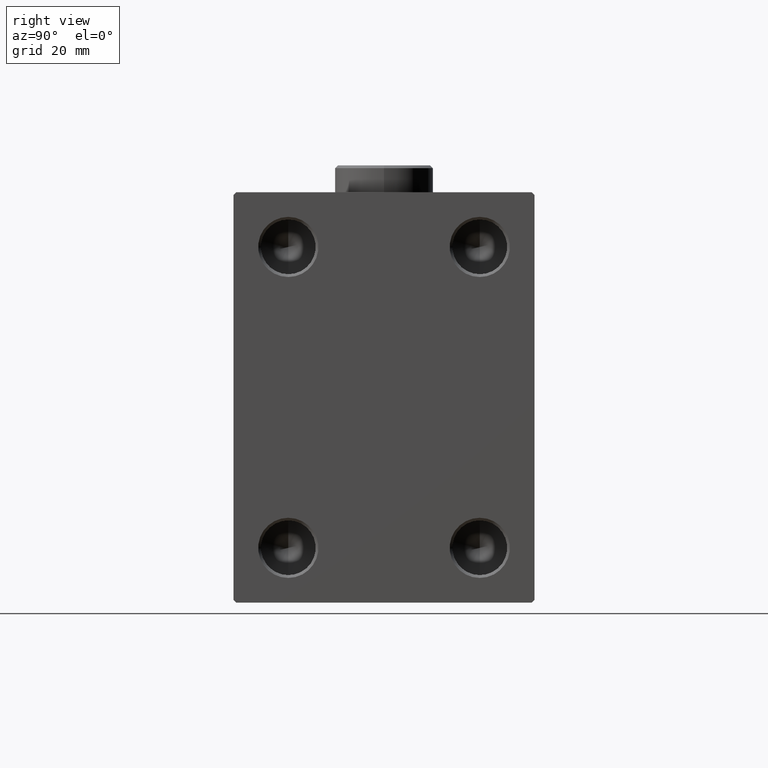
[diagram: clean part render]
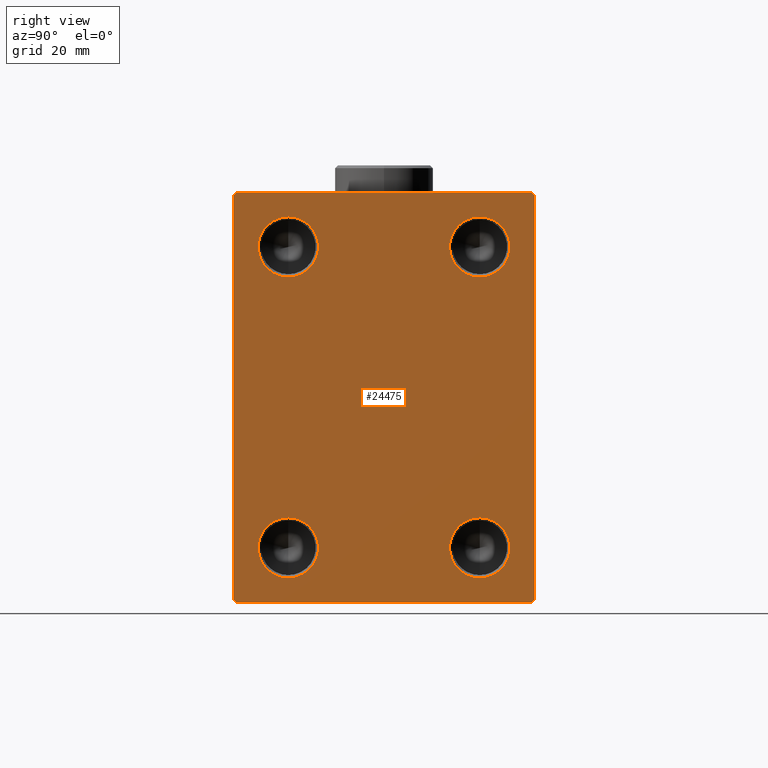
[diagram: same view with one face highlighted and labeled with its STEP entity id]
A machine part, right view. The second image highlights one B-rep face of the part: STEP entity #24475.
In plain terms, the highlighted planar face has unit normal (1, 0, 0).
Its self-contained STEP definition (entity closure, byte-faithful):
#534 = LINE ( 'NONE', #4228, #26527 ) ;
#584 = VECTOR ( 'NONE', #36568, 1000.000000000000000 ) ;
#1288 = DIRECTION ( 'NONE',  ( 0.000000000000000000, 0.000000000000000000, -1.000000000000000000 ) ) ;
#1483 = ORIENTED_EDGE ( 'NONE', *, *, #23324, .F. ) ;
#1681 = LINE ( 'NONE', #15740, #12136 ) ;
#1721 = VERTEX_POINT ( 'NONE', #13013 ) ;
#1748 = CARTESIAN_POINT ( 'NONE',  ( 80.00000000000000000, 27.49999999999999645, 37.50000000000000000 ) ) ;
#1836 = DIRECTION ( 'NONE',  ( 0.000000000000000000, 0.000000000000000000, -1.000000000000000000 ) ) ;
#1878 = DIRECTION ( 'NONE',  ( 1.000000000000000000, -0.000000000000000000, -0.000000000000000000 ) ) ;
#2237 = FACE_BOUND ( 'NONE', #3234, .T. ) ;
#2831 = VERTEX_POINT ( 'NONE', #5893 ) ;
#2861 = ORIENTED_EDGE ( 'NONE', *, *, #21740, .T. ) ;
#2931 = FACE_BOUND ( 'NONE', #36916, .T. ) ;
#3234 = EDGE_LOOP ( 'NONE', ( #21509, #29872 ) ) ;
#3996 = EDGE_CURVE ( 'NONE', #44476, #1721, #6262, .T. ) ;
#4016 = VERTEX_POINT ( 'NONE', #18296 ) ;
#4127 = EDGE_CURVE ( 'NONE', #39561, #23526, #1681, .T. ) ;
#4228 = CARTESIAN_POINT ( 'NONE',  ( 80.00000000000000000, -27.49999999999999645, 37.49999999999998579 ) ) ;
#4265 = ORIENTED_EDGE ( 'NONE', *, *, #4127, .T. ) ;
#4395 = VERTEX_POINT ( 'NONE', #15138 ) ;
#5280 = ORIENTED_EDGE ( 'NONE', *, *, #38002, .T. ) ;
#5478 = CARTESIAN_POINT ( 'NONE',  ( 80.00000000000000000, 27.50000000000000355, -37.50000000000000000 ) ) ;
#5667 = EDGE_CURVE ( 'NONE', #32601, #4395, #18157, .T. ) ;
#5717 = DIRECTION ( 'NONE',  ( 0.000000000000000000, -9.251858538542971581E-17, 1.000000000000000000 ) ) ;
#5851 = VECTOR ( 'NONE', #27840, 1000.000000000000114 ) ;
#5893 = CARTESIAN_POINT ( 'NONE',  ( 80.00000000000000000, 17.50000000000000000, -22.00000000000000355 ) ) ;
#6262 = CIRCLE ( 'NONE', #22467, 5.499999999999991118 ) ;
#6999 = CARTESIAN_POINT ( 'NONE',  ( 80.00000000000000000, -26.99999999999999645, 37.49999999999998579 ) ) ;
#7161 = VECTOR ( 'NONE', #33404, 1000.000000000000114 ) ;
#7904 = DIRECTION ( 'NONE',  ( 1.000000000000000000, -0.000000000000000000, -0.000000000000000000 ) ) ;
#8962 = CARTESIAN_POINT ( 'NONE',  ( 80.00000000000000000, -17.50000000000000000, 22.00000000000000711 ) ) ;
#9268 = EDGE_CURVE ( 'NONE', #41545, #38009, #26141, .T. ) ;
#9448 = LINE ( 'NONE', #34099, #7161 ) ;
#9628 = CARTESIAN_POINT ( 'NONE',  ( 80.00000000000000000, 0.000000000000000000, 0.000000000000000000 ) ) ;
#9897 = VERTEX_POINT ( 'NONE', #33511 ) ;
#10067 = CARTESIAN_POINT ( 'NONE',  ( 80.00000000000000000, -17.50000000000000000, -27.49999999999999645 ) ) ;
#10088 = AXIS2_PLACEMENT_3D ( 'NONE', #26326, #7904, #36938 ) ;
#10489 = DIRECTION ( 'NONE',  ( 0.000000000000000000, 0.000000000000000000, -1.000000000000000000 ) ) ;
#10599 = DIRECTION ( 'NONE',  ( 1.000000000000000000, -0.000000000000000000, -0.000000000000000000 ) ) ;
#11702 = CIRCLE ( 'NONE', #29345, 5.499999999999991118 ) ;
#12136 = VECTOR ( 'NONE', #29783, 1000.000000000000114 ) ;
#12170 = VECTOR ( 'NONE', #36136, 1000.000000000000000 ) ;
#12472 = VERTEX_POINT ( 'NONE', #27387 ) ;
#12807 = VERTEX_POINT ( 'NONE', #41844 ) ;
#13013 = CARTESIAN_POINT ( 'NONE',  ( 80.00000000000000000, -17.50000000000000000, -32.99999999999998579 ) ) ;
#13933 = DIRECTION ( 'NONE',  ( 0.000000000000000000, 0.000000000000000000, -1.000000000000000000 ) ) ;
#14574 = CIRCLE ( 'NONE', #19018, 5.499999999999994671 ) ;
#15138 = CARTESIAN_POINT ( 'NONE',  ( 80.00000000000000000, 26.99999999999998934, -37.50000000000000000 ) ) ;
#15740 = CARTESIAN_POINT ( 'NONE',  ( 80.00000000000000000, 32.24999999999999289, 32.24999999999999289 ) ) ;
#15770 = EDGE_CURVE ( 'NONE', #23526, #30276, #26416, .T. ) ;
#16138 = CIRCLE ( 'NONE', #31613, 5.499999999999991118 ) ;
#17623 = VERTEX_POINT ( 'NONE', #21008 ) ;
#17902 = CARTESIAN_POINT ( 'NONE',  ( 80.00000000000000000, -17.50000000000000000, -22.00000000000000355 ) ) ;
#18157 = LINE ( 'NONE', #32212, #12170 ) ;
#18296 = CARTESIAN_POINT ( 'NONE',  ( 80.00000000000000000, -27.49999999999999645, 36.99999999999998579 ) ) ;
#18391 = CARTESIAN_POINT ( 'NONE',  ( 80.00000000000000000, 26.99999999999999645, 37.50000000000000000 ) ) ;
#18663 = CARTESIAN_POINT ( 'NONE',  ( 80.00000000000000000, -17.50000000000000000, 27.50000000000000000 ) ) ;
#19018 = AXIS2_PLACEMENT_3D ( 'NONE', #39798, #10599, #1288 ) ;
#19486 = DIRECTION ( 'NONE',  ( 1.000000000000000000, -0.000000000000000000, -0.000000000000000000 ) ) ;
#19612 = EDGE_LOOP ( 'NONE', ( #25670, #45597, #30327, #5280, #28769, #2861, #44776, #4265 ) ) ;
#19824 = EDGE_CURVE ( 'NONE', #30276, #4016, #30599, .T. ) ;
#20267 = CARTESIAN_POINT ( 'NONE',  ( 80.00000000000000000, -17.50000000000000000, 33.00000000000000000 ) ) ;
#20670 = DIRECTION ( 'NONE',  ( 0.000000000000000000, 0.000000000000000000, -1.000000000000000000 ) ) ;
#21008 = CARTESIAN_POINT ( 'NONE',  ( 80.00000000000000000, 27.50000000000000355, -36.99999999999998579 ) ) ;
#21418 = VERTEX_POINT ( 'NONE', #40954 ) ;
#21509 = ORIENTED_EDGE ( 'NONE', *, *, #3996, .F. ) ;
#21740 = EDGE_CURVE ( 'NONE', #4395, #17623, #36075, .T. ) ;
#22002 = EDGE_CURVE ( 'NONE', #21418, #2831, #11702, .T. ) ;
#22236 = DIRECTION ( 'NONE',  ( -0.000000000000000000, 0.7071067811865474617, 0.7071067811865474617 ) ) ;
#22467 = AXIS2_PLACEMENT_3D ( 'NONE', #28667, #28008, #10489 ) ;
#22983 = ORIENTED_EDGE ( 'NONE', *, *, #43296, .F. ) ;
#23324 = EDGE_CURVE ( 'NONE', #38009, #41545, #38959, .T. ) ;
#23446 = DIRECTION ( 'NONE',  ( 0.000000000000000000, 0.000000000000000000, -1.000000000000000000 ) ) ;
#23507 = DIRECTION ( 'NONE',  ( 1.000000000000000000, -0.000000000000000000, -0.000000000000000000 ) ) ;
#23526 = VERTEX_POINT ( 'NONE', #18391 ) ;
#23705 = EDGE_CURVE ( 'NONE', #1721, #44476, #16138, .T. ) ;
#24096 = AXIS2_PLACEMENT_3D ( 'NONE', #33409, #23507, #1836 ) ;
#24475 = ADVANCED_FACE ( 'NONE', ( #26892, #27586, #2237, #2931, #40967 ), #30344, .T. ) ;
#25670 = ORIENTED_EDGE ( 'NONE', *, *, #15770, .T. ) ;
#26141 = CIRCLE ( 'NONE', #32032, 5.499999999999994671 ) ;
#26326 = CARTESIAN_POINT ( 'NONE',  ( 80.00000000000000000, 17.50000000000000000, 27.50000000000000000 ) ) ;
#26416 = LINE ( 'NONE', #1748, #584 ) ;
#26527 = VECTOR ( 'NONE', #13933, 1000.000000000000000 ) ;
#26892 = FACE_BOUND ( 'NONE', #44086, .T. ) ;
#27017 = EDGE_CURVE ( 'NONE', #4016, #9897, #534, .T. ) ;
#27147 = LINE ( 'NONE', #5478, #44707 ) ;
#27387 = CARTESIAN_POINT ( 'NONE',  ( 80.00000000000000000, 17.50000000000000000, 33.00000000000000000 ) ) ;
#27586 = FACE_BOUND ( 'NONE', #28951, .T. ) ;
#27840 = DIRECTION ( 'NONE',  ( 0.000000000000000000, -0.7071067811865474617, -0.7071067811865474617 ) ) ;
#28008 = DIRECTION ( 'NONE',  ( 1.000000000000000000, -0.000000000000000000, -0.000000000000000000 ) ) ;
#28667 = CARTESIAN_POINT ( 'NONE',  ( 80.00000000000000000, -17.50000000000000000, -27.49999999999999645 ) ) ;
#28769 = ORIENTED_EDGE ( 'NONE', *, *, #5667, .T. ) ;
#28951 = EDGE_LOOP ( 'NONE', ( #1483, #35903 ) ) ;
#29345 = AXIS2_PLACEMENT_3D ( 'NONE', #41933, #1878, #31544 ) ;
#29395 = ORIENTED_EDGE ( 'NONE', *, *, #37527, .F. ) ;
#29616 = DIRECTION ( 'NONE',  ( 0.000000000000000000, 0.000000000000000000, -1.000000000000000000 ) ) ;
#29783 = DIRECTION ( 'NONE',  ( -0.000000000000000000, -0.7071067811865474617, 0.7071067811865474617 ) ) ;
#29872 = ORIENTED_EDGE ( 'NONE', *, *, #23705, .F. ) ;
#30082 = CARTESIAN_POINT ( 'NONE',  ( 80.00000000000000000, 27.49999999999999645, 37.00000000000000000 ) ) ;
#30161 = DIRECTION ( 'NONE',  ( 1.000000000000000000, -0.000000000000000000, -0.000000000000000000 ) ) ;
#30276 = VERTEX_POINT ( 'NONE', #6999 ) ;
#30327 = ORIENTED_EDGE ( 'NONE', *, *, #27017, .T. ) ;
#30344 = PLANE ( 'NONE',  #33115 ) ;
#30599 = LINE ( 'NONE', #45344, #5851 ) ;
#31544 = DIRECTION ( 'NONE',  ( 0.000000000000000000, 0.000000000000000000, -1.000000000000000000 ) ) ;
#31613 = AXIS2_PLACEMENT_3D ( 'NONE', #10067, #34499, #20670 ) ;
#32032 = AXIS2_PLACEMENT_3D ( 'NONE', #36786, #19486, #29616 ) ;
#32212 = CARTESIAN_POINT ( 'NONE',  ( 80.00000000000000000, -27.49999999999999645, -37.50000000000000000 ) ) ;
#32291 = CARTESIAN_POINT ( 'NONE',  ( 80.00000000000000000, -26.99999999999999645, -37.50000000000000000 ) ) ;
#32601 = VERTEX_POINT ( 'NONE', #32291 ) ;
#33115 = AXIS2_PLACEMENT_3D ( 'NONE', #9628, #41427, #23446 ) ;
#33404 = DIRECTION ( 'NONE',  ( -0.000000000000000000, 0.7071067811865474617, -0.7071067811865474617 ) ) ;
#33409 = CARTESIAN_POINT ( 'NONE',  ( 80.00000000000000000, 17.50000000000000000, -27.49999999999999645 ) ) ;
#33511 = CARTESIAN_POINT ( 'NONE',  ( 80.00000000000000000, -27.49999999999999645, -37.00000000000000000 ) ) ;
#34099 = CARTESIAN_POINT ( 'NONE',  ( 80.00000000000000000, -32.24999999999999289, -32.24999999999999289 ) ) ;
#34499 = DIRECTION ( 'NONE',  ( 1.000000000000000000, -0.000000000000000000, -0.000000000000000000 ) ) ;
#35875 = CIRCLE ( 'NONE', #24096, 5.499999999999991118 ) ;
#35903 = ORIENTED_EDGE ( 'NONE', *, *, #9268, .F. ) ;
#36075 = LINE ( 'NONE', #43878, #38933 ) ;
#36136 = DIRECTION ( 'NONE',  ( 0.000000000000000000, 1.000000000000000000, 0.000000000000000000 ) ) ;
#36568 = DIRECTION ( 'NONE',  ( 0.000000000000000000, -1.000000000000000000, -2.523234146875355998E-16 ) ) ;
#36740 = AXIS2_PLACEMENT_3D ( 'NONE', #18663, #30161, #43769 ) ;
#36786 = CARTESIAN_POINT ( 'NONE',  ( 80.00000000000000000, -17.50000000000000000, 27.50000000000000000 ) ) ;
#36916 = EDGE_LOOP ( 'NONE', ( #22983, #37973 ) ) ;
#36938 = DIRECTION ( 'NONE',  ( 0.000000000000000000, 0.000000000000000000, -1.000000000000000000 ) ) ;
#37527 = EDGE_CURVE ( 'NONE', #12807, #12472, #38810, .T. ) ;
#37531 = ORIENTED_EDGE ( 'NONE', *, *, #45432, .F. ) ;
#37973 = ORIENTED_EDGE ( 'NONE', *, *, #22002, .F. ) ;
#38002 = EDGE_CURVE ( 'NONE', #9897, #32601, #9448, .T. ) ;
#38009 = VERTEX_POINT ( 'NONE', #20267 ) ;
#38810 = CIRCLE ( 'NONE', #10088, 5.499999999999994671 ) ;
#38933 = VECTOR ( 'NONE', #22236, 1000.000000000000114 ) ;
#38959 = CIRCLE ( 'NONE', #36740, 5.499999999999994671 ) ;
#39561 = VERTEX_POINT ( 'NONE', #30082 ) ;
#39798 = CARTESIAN_POINT ( 'NONE',  ( 80.00000000000000000, 17.50000000000000000, 27.50000000000000000 ) ) ;
#40954 = CARTESIAN_POINT ( 'NONE',  ( 80.00000000000000000, 17.50000000000000000, -32.99999999999998579 ) ) ;
#40967 = FACE_OUTER_BOUND ( 'NONE', #19612, .T. ) ;
#41427 = DIRECTION ( 'NONE',  ( 1.000000000000000000, 0.000000000000000000, 0.000000000000000000 ) ) ;
#41545 = VERTEX_POINT ( 'NONE', #8962 ) ;
#41844 = CARTESIAN_POINT ( 'NONE',  ( 80.00000000000000000, 17.50000000000000000, 22.00000000000000711 ) ) ;
#41933 = CARTESIAN_POINT ( 'NONE',  ( 80.00000000000000000, 17.50000000000000000, -27.49999999999999645 ) ) ;
#43296 = EDGE_CURVE ( 'NONE', #2831, #21418, #35875, .T. ) ;
#43769 = DIRECTION ( 'NONE',  ( 0.000000000000000000, 0.000000000000000000, -1.000000000000000000 ) ) ;
#43878 = CARTESIAN_POINT ( 'NONE',  ( 80.00000000000000000, 32.24999999999999289, -32.24999999999999289 ) ) ;
#44086 = EDGE_LOOP ( 'NONE', ( #37531, #29395 ) ) ;
#44322 = EDGE_CURVE ( 'NONE', #17623, #39561, #27147, .T. ) ;
#44476 = VERTEX_POINT ( 'NONE', #17902 ) ;
#44707 = VECTOR ( 'NONE', #5717, 1000.000000000000000 ) ;
#44776 = ORIENTED_EDGE ( 'NONE', *, *, #44322, .T. ) ;
#45344 = CARTESIAN_POINT ( 'NONE',  ( 80.00000000000000000, -32.24999999999999289, 32.24999999999999289 ) ) ;
#45432 = EDGE_CURVE ( 'NONE', #12472, #12807, #14574, .T. ) ;
#45597 = ORIENTED_EDGE ( 'NONE', *, *, #19824, .T. ) ;